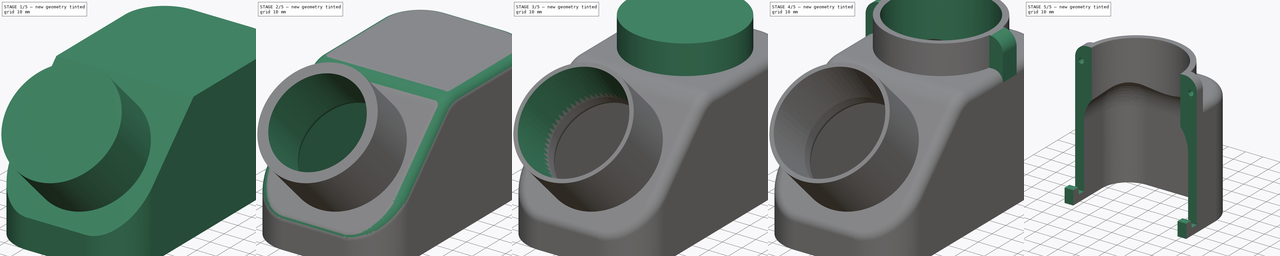
[diagram: build sequence overview — one tinted view per stage of 5, left to right]
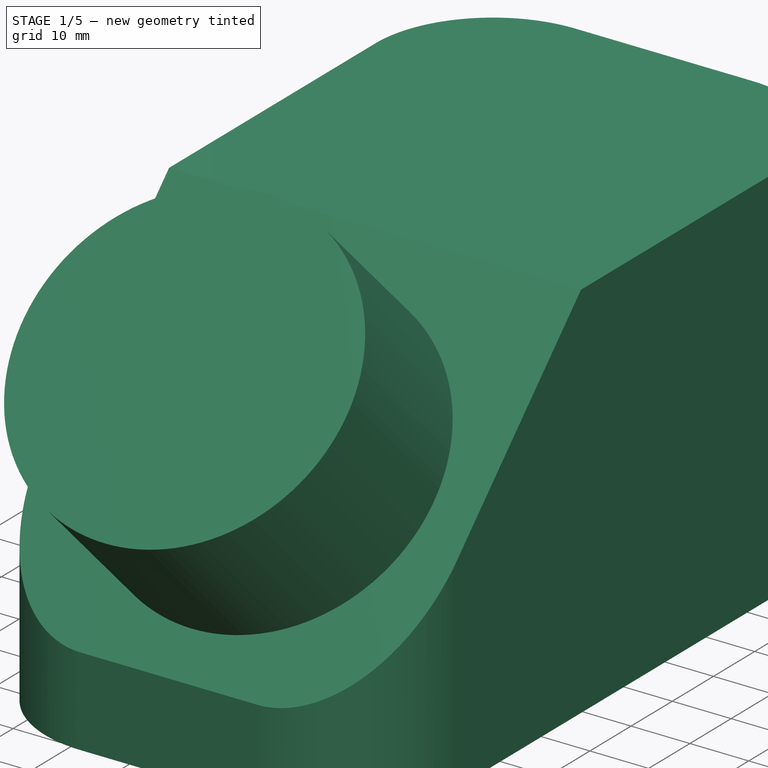
[diagram: stage 1 of 5 — iso view after this stage's code; geometry added in this stage tinted green]
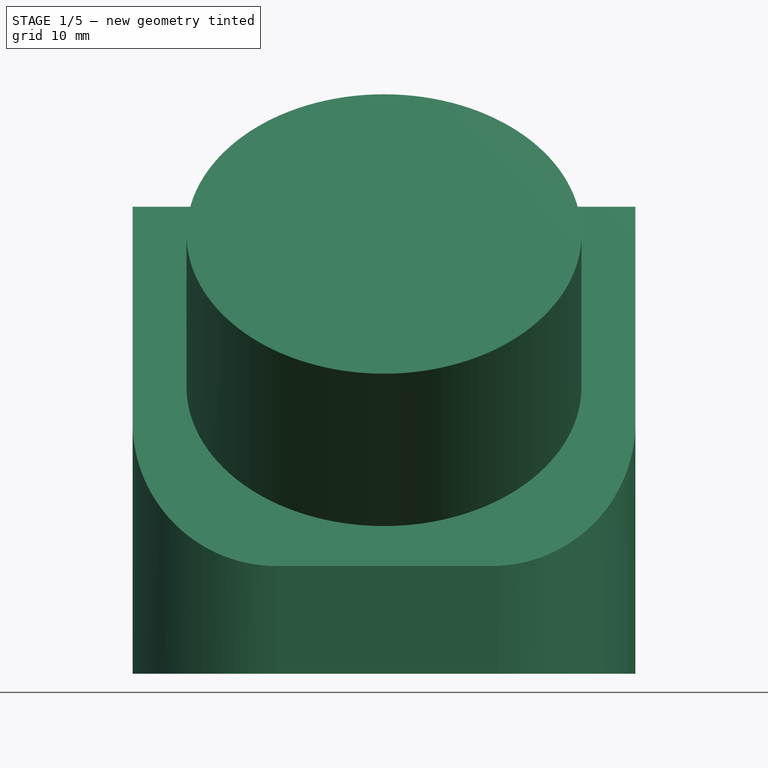
[diagram: stage 1 of 5 — front view after this stage's code; geometry added in this stage tinted green]
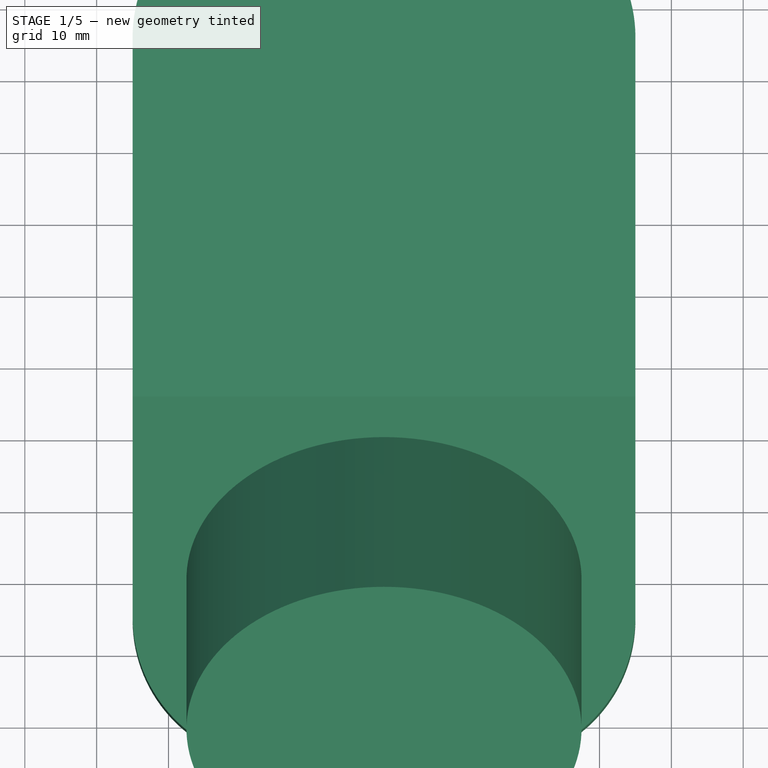
[diagram: stage 1 of 5 — top view after this stage's code; geometry added in this stage tinted green]
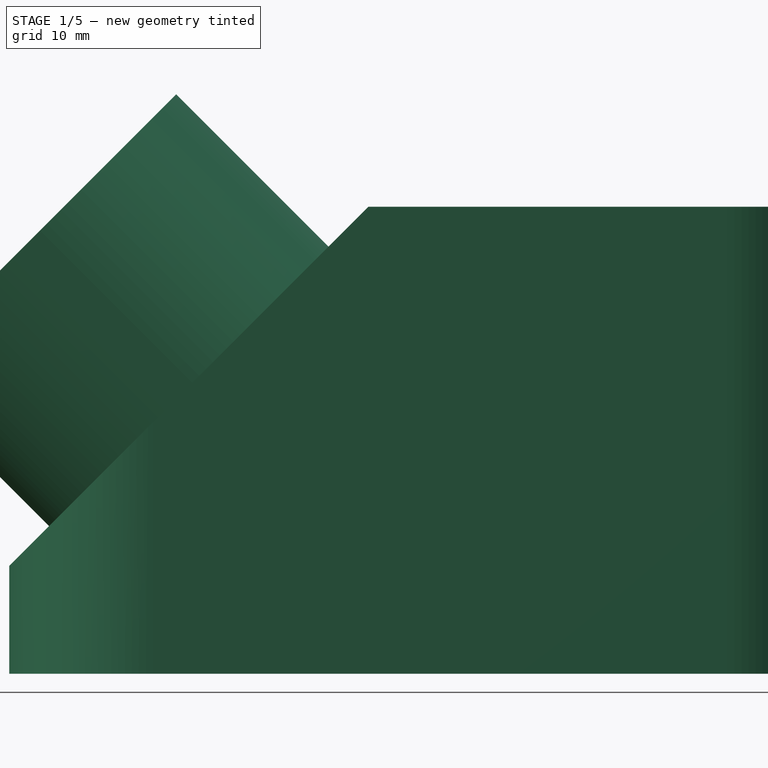
[diagram: stage 1 of 5 — right view after this stage's code; geometry added in this stage tinted green]
FCSTD DOCUMENT  (FreeCAD 0.19R23141 (Git))
Label: CNCShoe2
License: All rights reserved
LicenseURL: http://en.wikipedia.org/wiki/All_rights_reserved
objects: Sketcher::SketchObject×8, PartDesign::Fillet×5, PartDesign::Pad×4, PartDesign::Pocket×4, PartDesign::Thickness×1, PartDesign::Chamfer×1, PartDesign::Body×1
note: 39 computed .brp shape members not serialized (recipe doc carries the construction recipe); baked Part::Feature solids carry a one-line shape summary decoded from their .brp

FEATURE [Sketcher::SketchObject] Sketch
  MapMode = 5
  Placement = pos=(0,0,0) rot=(0.57735,0.57735,0.57735;2.0944rad)
  Support = -> [YZ_Plane]
  sketch-geometry (5):
    g0: LineSegment StartX=-85 StartY=0 StartZ=0 EndX=-85 EndY=15 EndZ=0
    g1: LineSegment StartX=-85 StartY=15 StartZ=0 EndX=-35 EndY=65 EndZ=0
    g2: LineSegment StartX=-35 StartY=65 StartZ=0 EndX=35 EndY=65 EndZ=0
    g3: LineSegment StartX=35 StartY=65 StartZ=0 EndX=35 EndY=0 EndZ=0
    g4: LineSegment StartX=35 StartY=0 StartZ=0 EndX=-85 EndY=0 EndZ=0
  constraints (15):
    c: PointOnObject(g0,g-1)
    c: Vertical(g0)
    c: Coincident(g0,g1)
    c: Coincident(g1,g2)
    c: Horizontal(g2)
    c: Coincident(g2,g3)
    c: PointOnObject(g3,g-1)
    c: Vertical(g3)
    c: Coincident(g3,g4)
    c: Coincident(g4,g0)
    c: DistanceX(g0,g2) = 120
    c: DistanceY(g3,g3) = 65
    c: DistanceX(g-1,g3) = 35
    c: DistanceX(g2,g2) = 70
    c: DistanceY(g0,g0) = 15
FEATURE [PartDesign::Pad] Pad
  Direction = (1,1,1)
  Length = 70
  Length2 = 100
  Midplane = true
  Placement = pos=(0,0,0) rot=(0.57735,0.57735,0.57735;2.0944rad)
  Profile = -> Sketch
  Type = 0
FEATURE [Sketcher::SketchObject] Sketch001
  ExternalGeometry = -> [Pad]
  MapMode = 5
  Placement = pos=(-3.61e-14,-50,50) rot=(0.357407,0.357407,-0.862856;1.71777rad)
  Support = -> [Pad]
  sketch-geometry (3):
    g0: LineSegment [constr] StartX=-21.2132 StartY=35 StartZ=0 EndX=14.1421 EndY=0 EndZ=0
    g1: LineSegment [constr] StartX=14.1421 StartY=0 StartZ=0 EndX=49.4975 EndY=35 EndZ=0
    g2: Circle CenterX=14.1421 CenterY=0 CenterZ=0 NormalX=0 NormalY=0 NormalZ=1 AngleXU=0 Radius=27.5
  constraints (7):
    c: Coincident(g-3,g0)
    c: Coincident(g0,g1)
    c: Coincident(g1,g-3)
    c: PointOnObject(g0,g-1)
    c: Equal(g0,g1)
    c: Coincident(g2,g0)
    c: Diameter(g2) = 55
FEATURE [PartDesign::Pad] Pad001
  BaseFeature = -> Pad
  Direction = (1,1,1)
  Length = 30
  Length2 = 100
  Placement = pos=(0,0,0) rot=(0.57735,0.57735,0.57735;2.0944rad)
  Profile = -> Sketch001
  Type = 0
FEATURE [PartDesign::Fillet] Fillet
  Base = -> Pad001 [Edge13,Edge3,Edge4,Edge15]
  BaseFeature = -> Pad001
  Placement = pos=(0,0,0) rot=(0.57735,0.57735,0.57735;2.0944rad)
  Radius = 20
  SupportTransform = false
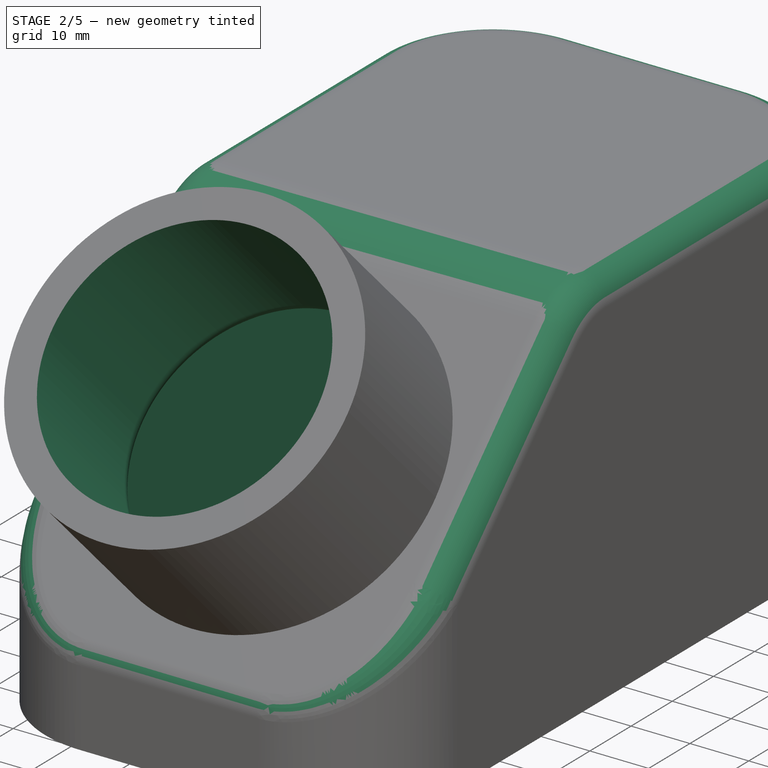
[diagram: stage 2 of 5 — iso view after this stage's code; geometry added in this stage tinted green]
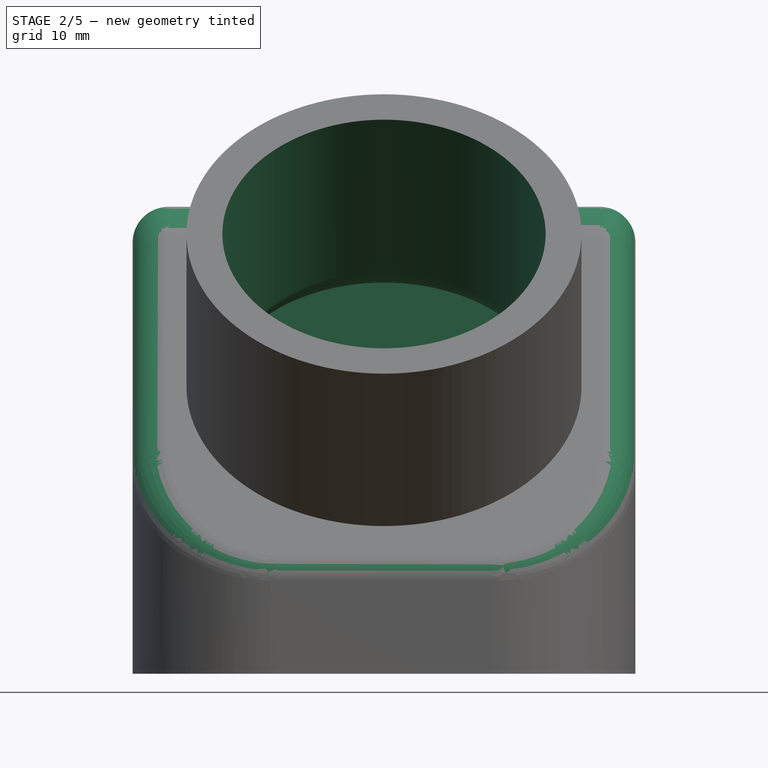
[diagram: stage 2 of 5 — front view after this stage's code; geometry added in this stage tinted green]
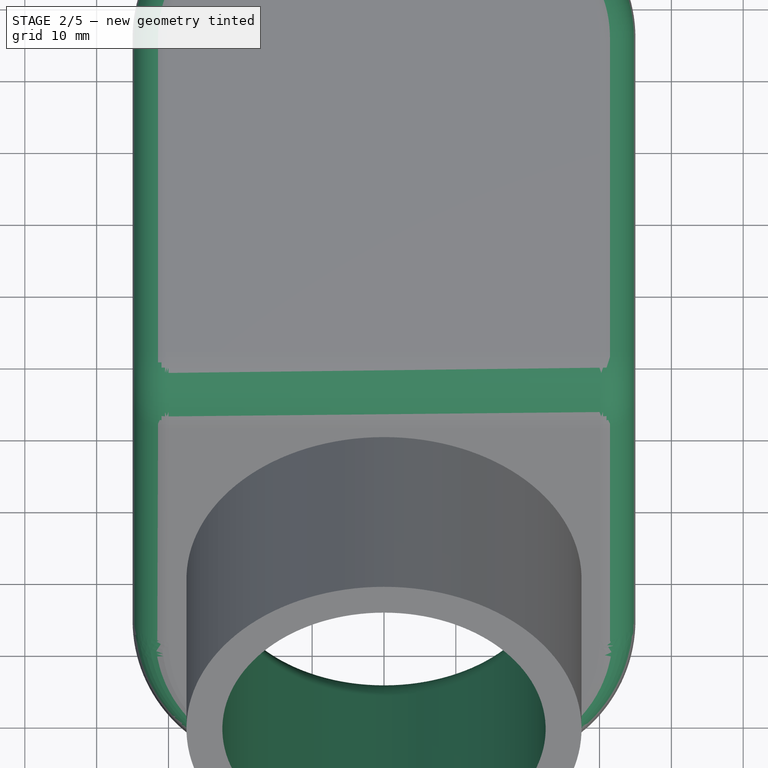
[diagram: stage 2 of 5 — top view after this stage's code; geometry added in this stage tinted green]
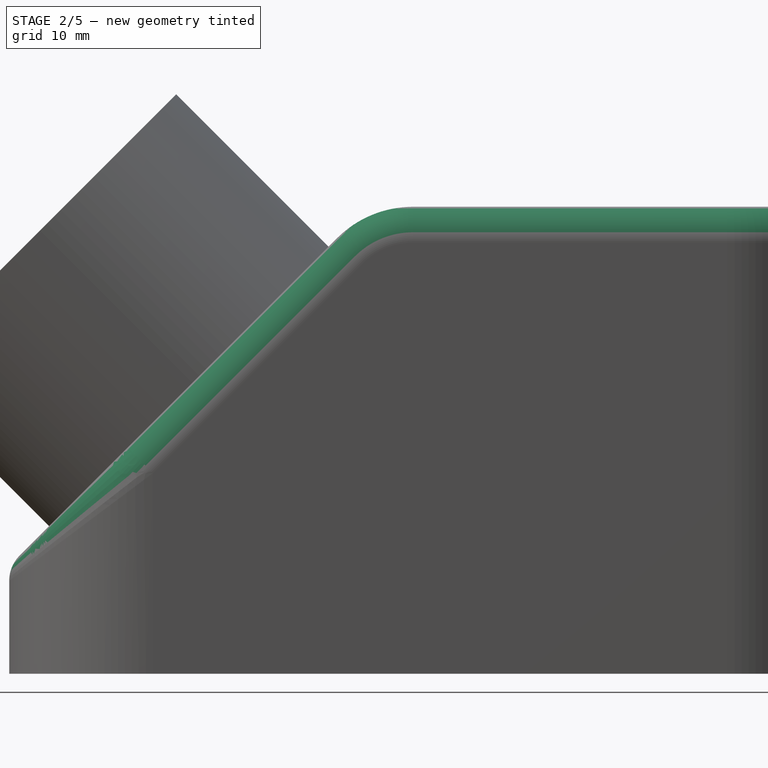
[diagram: stage 2 of 5 — right view after this stage's code; geometry added in this stage tinted green]
FEATURE [PartDesign::Thickness] Thickness
  Base = -> Fillet [Face2,Face13]
  BaseFeature = -> Fillet
  Intersection = false
  Join = 0
  Mode = 0
  Reversed = true
  SupportTransform = false
  Value = 5
FEATURE [PartDesign::Fillet] Fillet001
  Base = -> Thickness [Edge13]
  BaseFeature = -> Thickness
  Radius = 15
  SupportTransform = false
FEATURE [PartDesign::Fillet] Fillet002
  Base = -> Fillet001 [Edge10]
  BaseFeature = -> Fillet001
  Radius = 5
  SupportTransform = false
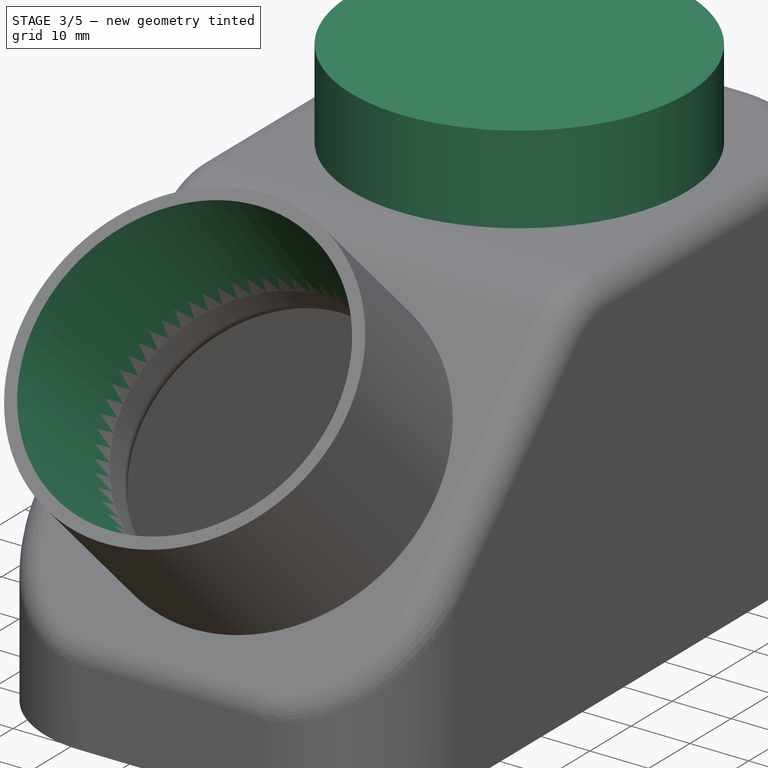
[diagram: stage 3 of 5 — iso view after this stage's code; geometry added in this stage tinted green]
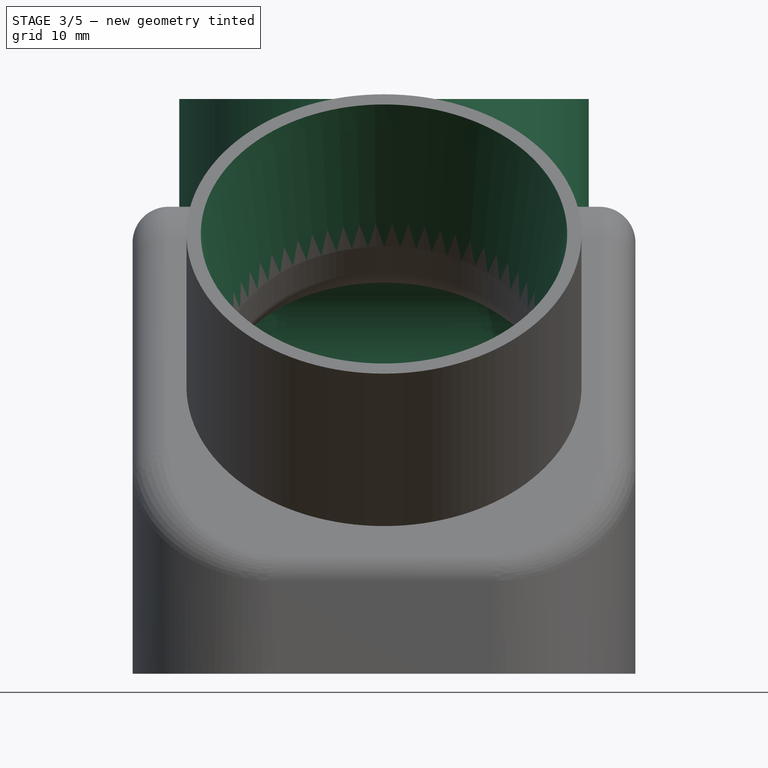
[diagram: stage 3 of 5 — front view after this stage's code; geometry added in this stage tinted green]
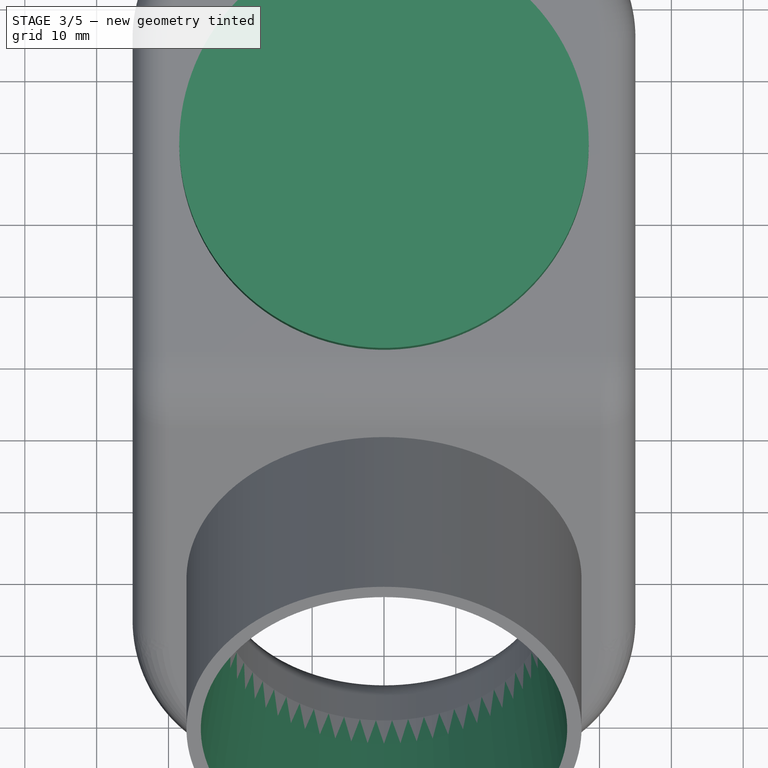
[diagram: stage 3 of 5 — top view after this stage's code; geometry added in this stage tinted green]
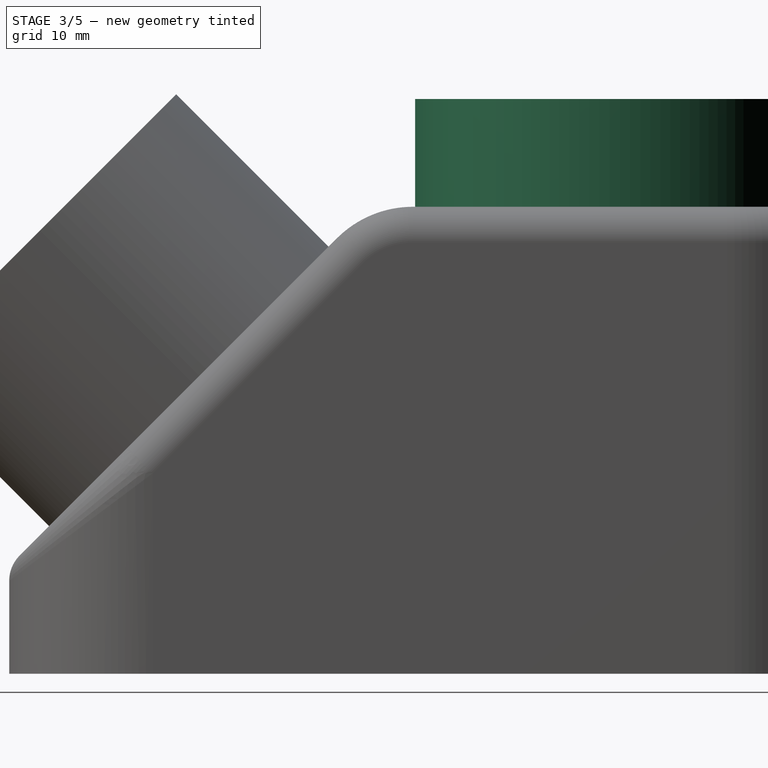
[diagram: stage 3 of 5 — right view after this stage's code; geometry added in this stage tinted green]
FEATURE [PartDesign::Chamfer] Chamfer
  Angle = 45
  Base = -> Fillet002 [Edge46]
  BaseFeature = -> Fillet002
  ChamferType = 1
  FlipDirection = false
  Size = 3
  Size2 = 25
  SupportTransform = false
FEATURE [PartDesign::Fillet] Fillet003
  Base = -> Chamfer [Edge67]
  BaseFeature = -> Chamfer
  Radius = 20
  SupportTransform = false
FEATURE [Sketcher::SketchObject] Sketch002
  MapMode = 5
  Placement = pos=(-1.82e-14,2.86e-14,65) rot=(0,0,1;0rad)
  Support = -> [Fillet003]
  sketch-geometry (1):
    g0: Circle CenterX=0 CenterY=0 CenterZ=0 NormalX=0 NormalY=0 NormalZ=1 AngleXU=0 Radius=28.5
  constraints (2):
    c: Coincident(g0,g-1)
    c: Diameter(g0) = 57
FEATURE [PartDesign::Pad] Pad002
  BaseFeature = -> Fillet003
  Direction = (1,1,1)
  Length = 15
  Length2 = 100
  Profile = -> Sketch002
  Type = 0
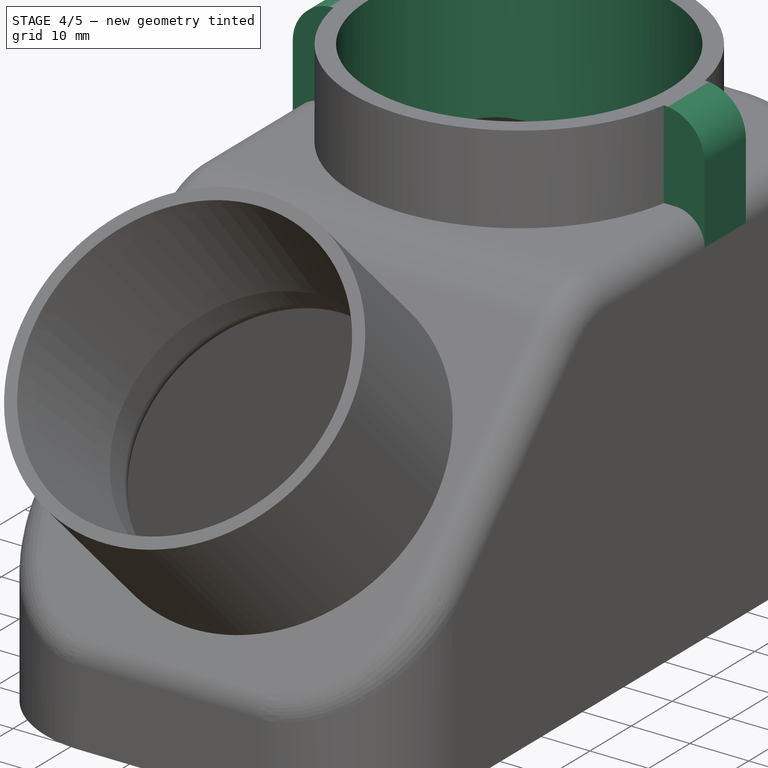
[diagram: stage 4 of 5 — iso view after this stage's code; geometry added in this stage tinted green]
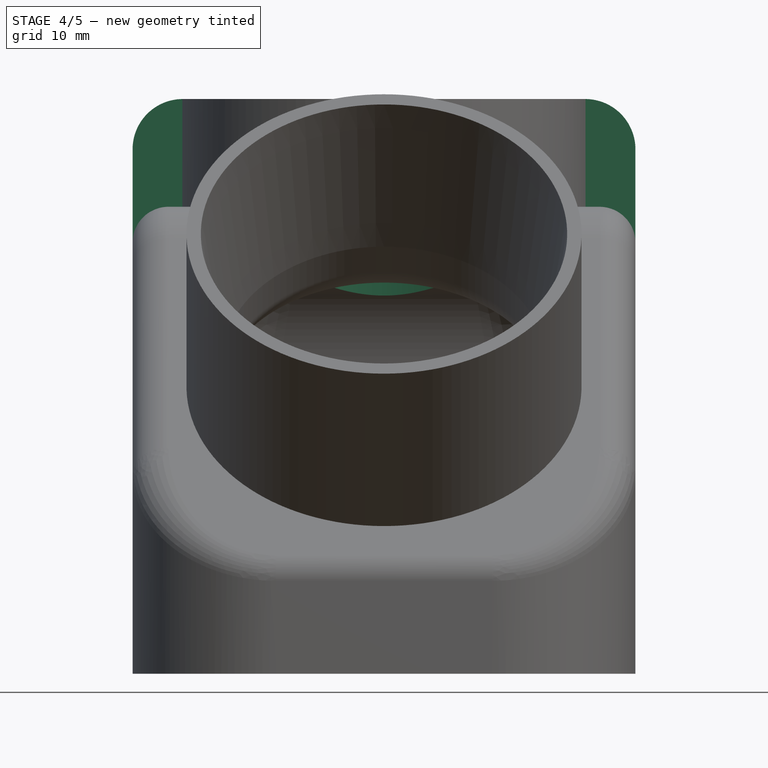
[diagram: stage 4 of 5 — front view after this stage's code; geometry added in this stage tinted green]
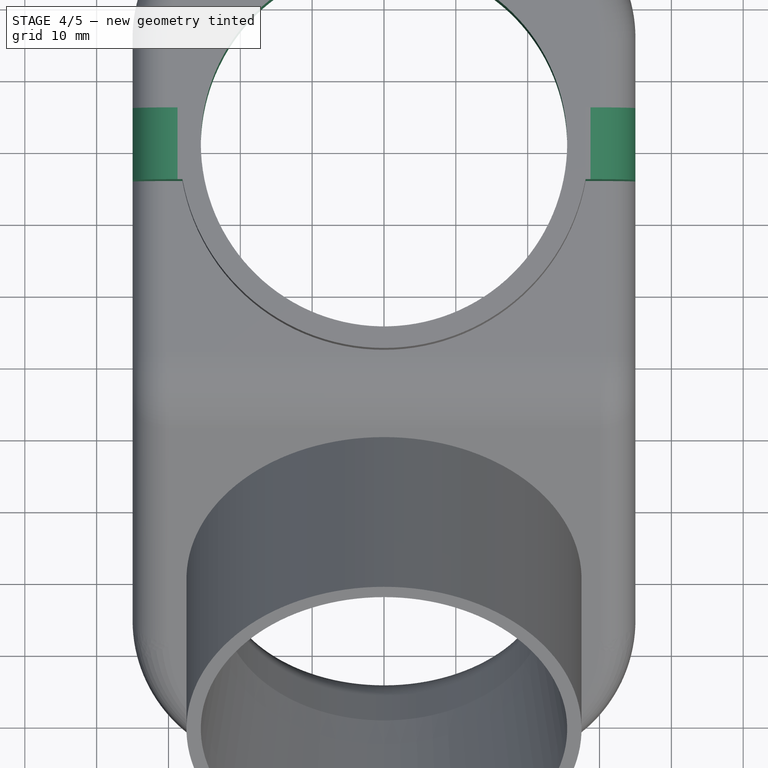
[diagram: stage 4 of 5 — top view after this stage's code; geometry added in this stage tinted green]
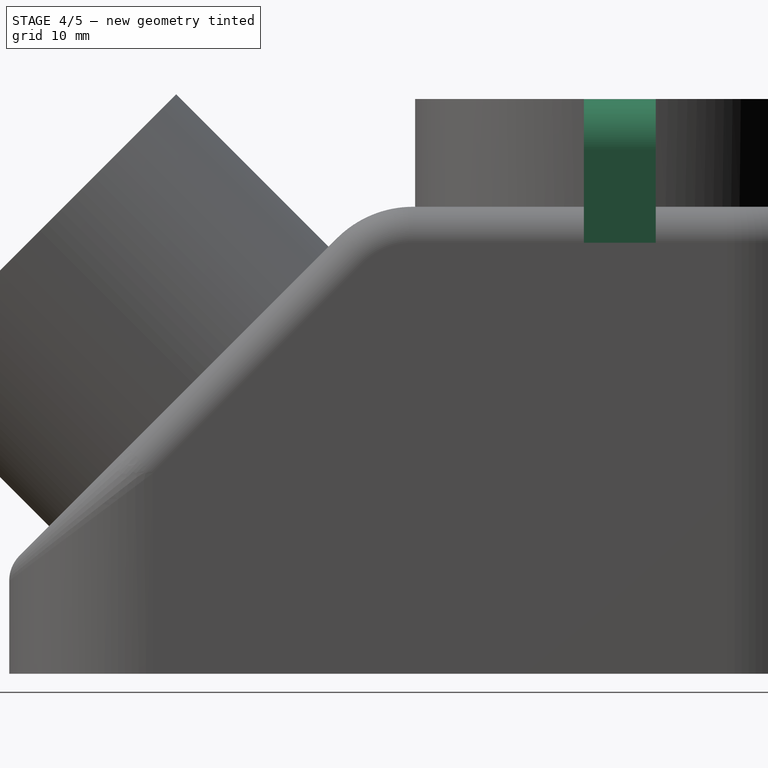
[diagram: stage 4 of 5 — right view after this stage's code; geometry added in this stage tinted green]
FEATURE [Sketcher::SketchObject] Sketch003
  MapMode = 5
  Placement = pos=(-5.28e-14,4.64e-14,80) rot=(0,0,1;0rad)
  Support = -> [Pad002]
  sketch-geometry (1):
    g0: Circle CenterX=0 CenterY=0 CenterZ=0 NormalX=0 NormalY=0 NormalZ=1 AngleXU=0 Radius=25.5
  constraints (2):
    c: Coincident(g0,g-1)
    c: Diameter(g0) = 51
FEATURE [PartDesign::Pocket] Pocket
  BaseFeature = -> Pad002
  Length = 5
  Length2 = 100
  Profile = -> Sketch003
  Type = 1
FEATURE [Sketcher::SketchObject] Sketch004
  ExternalGeometry = -> [Pocket]
  MapMode = 5
  Placement = pos=(0,0,0) rot=(0,0.707107,0.707107;3.14159rad)
  Support = -> [XZ_Plane]
  sketch-geometry (10):
    g0: LineSegment StartX=-35 StartY=60 StartZ=0 EndX=-26 EndY=60 EndZ=0
    g1: LineSegment StartX=-26 StartY=60 StartZ=0 EndX=-26 EndY=80 EndZ=0
    g2: LineSegment StartX=-26 StartY=80 StartZ=0 EndX=-35 EndY=80 EndZ=0
    g3: LineSegment StartX=-35 StartY=80 StartZ=0 EndX=-35 EndY=60 EndZ=0
    g4: LineSegment StartX=26 StartY=80 StartZ=0 EndX=35 EndY=80 EndZ=0
    g5: LineSegment StartX=35 StartY=80 StartZ=0 EndX=35 EndY=60 EndZ=0
    g6: LineSegment StartX=35 StartY=60 StartZ=0 EndX=26 EndY=60 EndZ=0
    g7: LineSegment StartX=26 StartY=60 StartZ=0 EndX=26 EndY=80 EndZ=0
    g8: LineSegment [constr] StartX=0 StartY=0 StartZ=0 EndX=26 EndY=80 EndZ=0
    g9: LineSegment [constr] StartX=-26 StartY=80 StartZ=0 EndX=-3.6e-15 EndY=0 EndZ=0
  constraints (25):
    c: Coincident(g0,g1)
    c: Coincident(g1,g2)
    c: Coincident(g2,g3)
    c: Coincident(g3,g0)
    c: Horizontal(g0)
    c: Horizontal(g2)
    c: Vertical(g1)
    c: Vertical(g3)
    c: Coincident(g4,g5)
    c: Coincident(g5,g6)
    c: Coincident(g6,g7)
    c: Coincident(g7,g4)
    c: Horizontal(g4)
    c: Horizontal(g6)
    c: Vertical(g5)
    c: Vertical(g7)
    c: Coincident(g5,g-4)
    c: PointOnObject(g4,g-5)
    c: PointOnObject(g1,g-5)
    c: Coincident(g-1,g8)
    c: Coincident(g8,g4)
    c: Coincident(g1,g9)
    c: Coincident(g9,g-1)
    c: Equal(g9,g8)
    c: DistanceX(g1,g4) = 52
FEATURE [PartDesign::Pad] Pad003
  BaseFeature = -> Pocket
  Direction = (1,1,1)
  Length = 10
  Length2 = 100
  Midplane = true
  Profile = -> Sketch004
  Refine = true
  Type = 0
FEATURE [PartDesign::Fillet] Fillet004
  Base = -> Pad003 [Edge137,Edge138]
  BaseFeature = -> Pad003
  Radius = 7
  SupportTransform = false
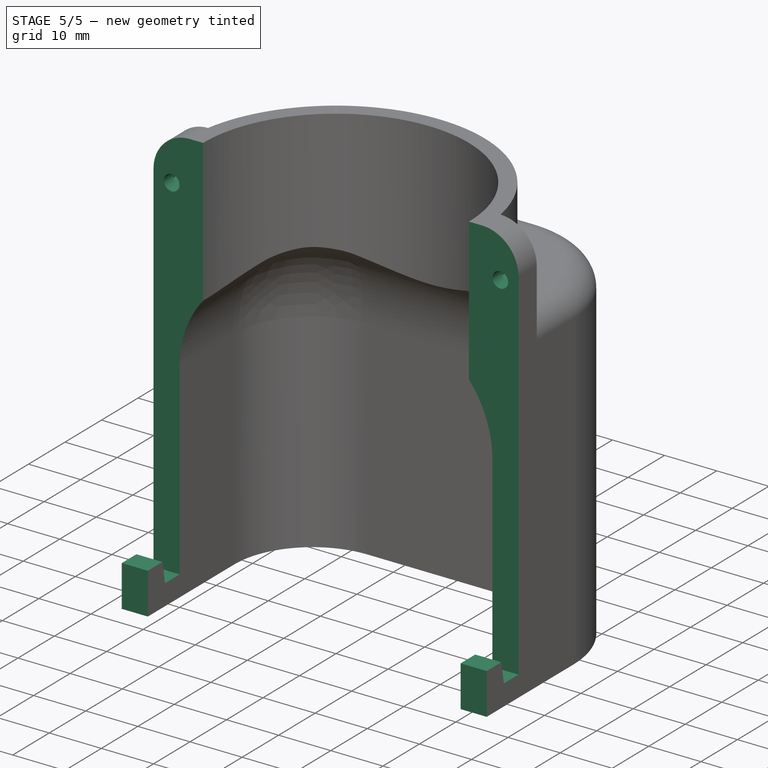
[diagram: stage 5 of 5 — iso view after this stage's code; geometry added in this stage tinted green]
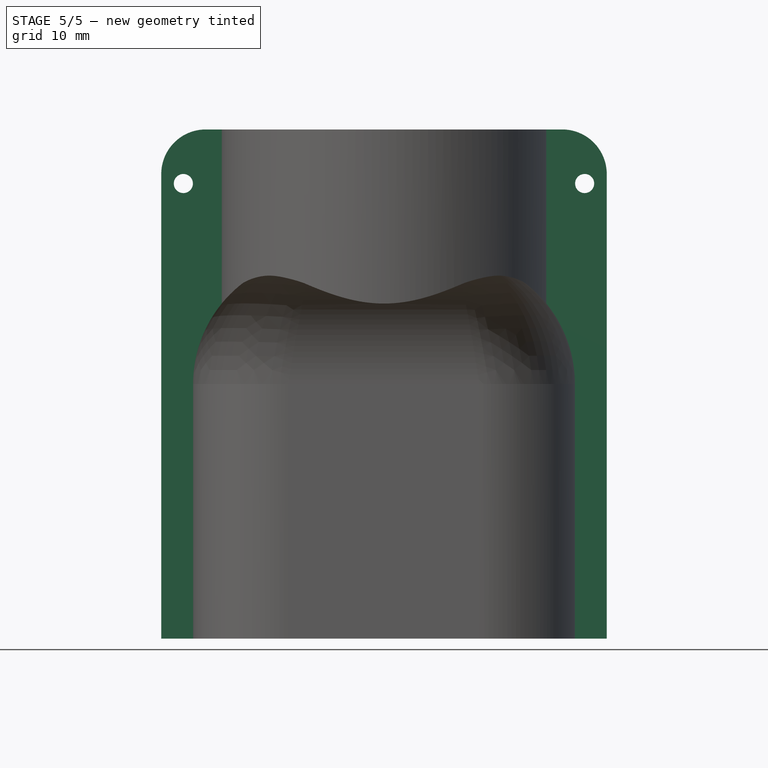
[diagram: stage 5 of 5 — front view after this stage's code; geometry added in this stage tinted green]
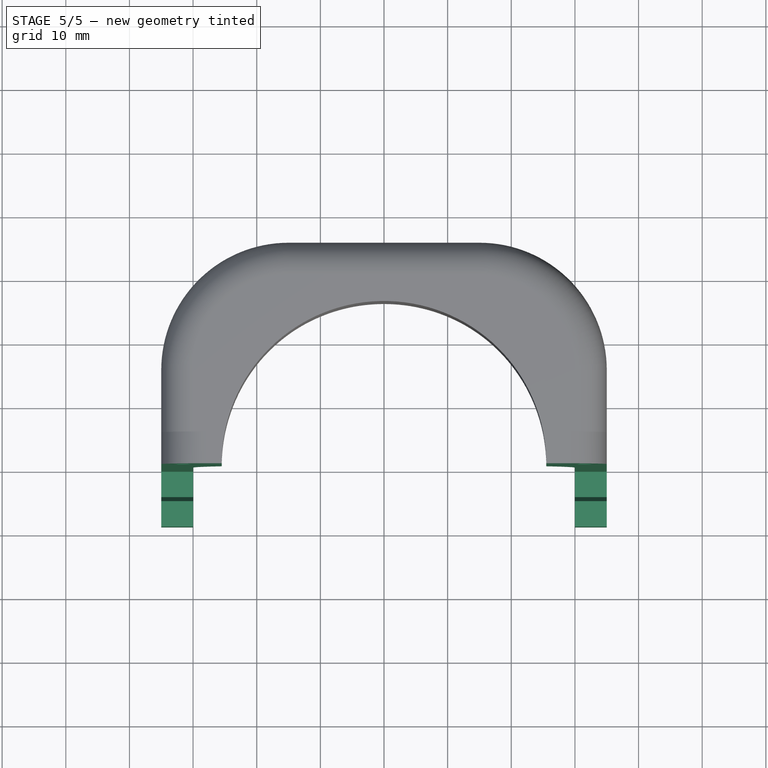
[diagram: stage 5 of 5 — top view after this stage's code; geometry added in this stage tinted green]
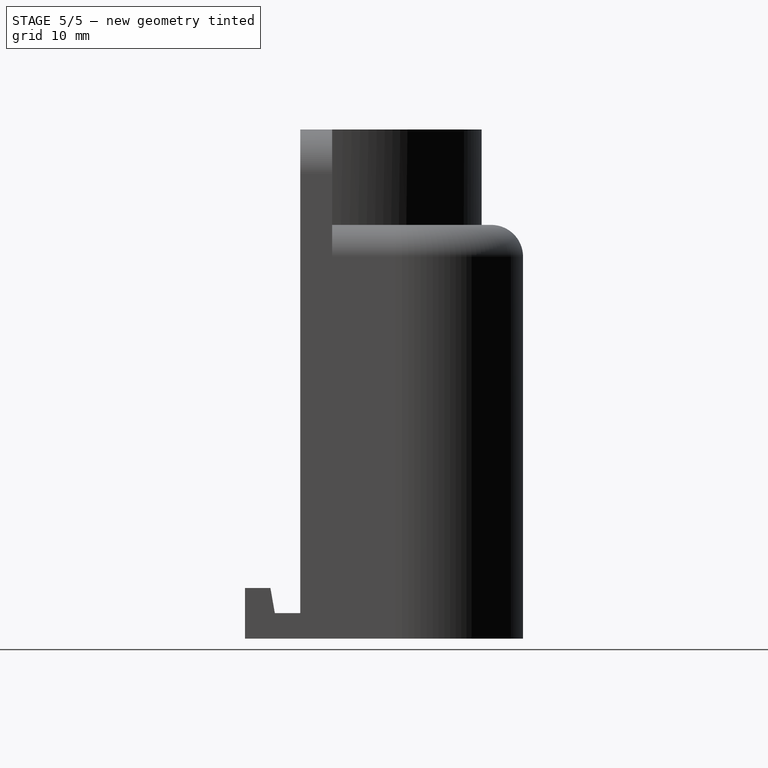
[diagram: stage 5 of 5 — right view after this stage's code; geometry added in this stage tinted green]
FEATURE [Sketcher::SketchObject] Sketch006
  ExternalGeometry = -> [Fillet004]
  MapMode = 5
  Placement = pos=(0,-5,1.1e-15) rot=(1,0,0;1.5708rad)
  Support = -> [Fillet004]
  sketch-geometry (10):
    g0: Circle CenterX=-31.529 CenterY=71.4998 CenterZ=0 NormalX=0 NormalY=0 NormalZ=1 AngleXU=0 Radius=1.5
    g1: Circle CenterX=31.529 CenterY=71.4998 CenterZ=0 NormalX=0 NormalY=0 NormalZ=1 AngleXU=0 Radius=1.5
    g2: LineSegment [constr] StartX=28.058 StartY=79.9998 StartZ=0 EndX=35 EndY=79.9998 EndZ=0
    g3: LineSegment [constr] StartX=35 StartY=79.9998 StartZ=0 EndX=35 EndY=73 EndZ=0
    g4: LineSegment [constr] StartX=28.058 StartY=79.9998 StartZ=0 EndX=31.529 EndY=71.4998 EndZ=0
    g5: LineSegment [constr] StartX=31.529 StartY=71.4998 StartZ=0 EndX=35 EndY=79.9998 EndZ=0
    g6: LineSegment [constr] StartX=-35 StartY=73 StartZ=0 EndX=-35 EndY=79.9998 EndZ=0
    g7: LineSegment [constr] StartX=-28.058 StartY=79.9998 StartZ=0 EndX=-35 EndY=79.9998 EndZ=0
    g8: LineSegment [constr] StartX=-35 StartY=79.9998 StartZ=0 EndX=-31.529 EndY=71.4998 EndZ=0
    g9: LineSegment [constr] StartX=-31.529 StartY=71.4998 StartZ=0 EndX=-28.058 EndY=79.9998 EndZ=0
  constraints (24):
    c: Coincident(g-3,g2)
    c: Coincident(g2,g3)
    c: Coincident(g3,g-3)
    c: Coincident(g2,g4)
    c: Coincident(g4,g1)
    c: Coincident(g4,g5)
    c: Coincident(g5,g2)
    c: Horizontal(g2)
    c: Vertical(g3)
    c: Equal(g5,g4)
    c: Coincident(g6,g-4)
    c: Vertical(g6)
    c: Coincident(g7,g-4)
    c: Coincident(g7,g6)
    c: Horizontal(g7)
    c: Coincident(g6,g8)
    c: Coincident(g8,g0)
    c: Coincident(g8,g9)
    c: Coincident(g9,g7)
    c: Equal(g9,g8)
    c: Equal(g8,g4)
    c: Diameter(g0) = 3
    c: Equal(g0,g1)
    c: DistanceY(g8,g8) = 8.5
FEATURE [PartDesign::Pocket] Pocket002
  BaseFeature = -> Fillet004
  Length = 5
  Length2 = 100
  Profile = -> Sketch006
  Type = 1
FEATURE [Sketcher::SketchObject] Sketch007
  ExternalGeometry = -> [Pocket002]
  MapMode = 5
  Placement = pos=(0,5,-1.1e-15) rot=(0,0.707107,0.707107;3.14159rad)
  Support = -> [Pocket002]
  sketch-geometry (14):
    g0: LineSegment StartX=-28.779 StartY=69.912 StartZ=0 EndX=-28.779 EndY=73.0875 EndZ=0
    g1: LineSegment StartX=-28.779 StartY=73.0875 StartZ=0 EndX=-31.529 EndY=74.6752 EndZ=0
    g2: LineSegment StartX=-31.529 StartY=74.6752 StartZ=0 EndX=-34.279 EndY=73.0875 EndZ=0
    g3: LineSegment StartX=-34.279 StartY=73.0875 StartZ=0 EndX=-34.279 EndY=69.912 EndZ=0
    g4: LineSegment StartX=-34.279 StartY=69.912 StartZ=0 EndX=-31.529 EndY=68.3243 EndZ=0
    g5: LineSegment StartX=-31.529 StartY=68.3243 StartZ=0 EndX=-28.779 EndY=69.912 EndZ=0
    g6: Circle [constr] CenterX=-31.529 CenterY=71.4998 CenterZ=0 NormalX=0 NormalY=0 NormalZ=1 AngleXU=0 Radius=3.17543
    g7: LineSegment StartX=34.279 StartY=69.912 StartZ=0 EndX=34.279 EndY=73.0875 EndZ=0
    g8: LineSegment StartX=34.279 StartY=73.0875 StartZ=0 EndX=31.529 EndY=74.6752 EndZ=0
    g9: LineSegment StartX=31.529 StartY=74.6752 StartZ=0 EndX=28.779 EndY=73.0875 EndZ=0
    g10: LineSegment StartX=28.779 StartY=73.0875 StartZ=0 EndX=28.779 EndY=69.912 EndZ=0
    g11: LineSegment StartX=28.779 StartY=69.912 StartZ=0 EndX=31.529 EndY=68.3243 EndZ=0
    g12: LineSegment StartX=31.529 StartY=68.3243 StartZ=0 EndX=34.279 EndY=69.912 EndZ=0
    g13: Circle [constr] CenterX=31.529 CenterY=71.4998 CenterZ=0 NormalX=0 NormalY=0 NormalZ=1 AngleXU=0 Radius=3.17543
  constraints (32):
    c: Coincident(g0,g1)
    c: Coincident(g1,g2)
    c: Coincident(g2,g3)
    c: Coincident(g3,g4)
    c: Coincident(g4,g5)
    c: Coincident(g5,g0)
    c: Equal(g0, g1-g5) x5
    c: PointOnObject(g0,g6)
    c: PointOnObject(g1,g6)
    c: PointOnObject(g2,g6)
    c: PointOnObject(g3,g6)
    c: PointOnObject(g4,g6)
    c: PointOnObject(g5,g6)
    c: Coincident(g6,g-4)
    c: Coincident(g7,g8)
    c: Coincident(g8,g9)
    c: Coincident(g9,g10)
    c: Coincident(g10,g11)
    c: Coincident(g11,g12)
    c: Coincident(g12,g7)
    c: Equal(g7, g8-g12) x5
    c: PointOnObject(g7,g13)
    c: PointOnObject(g8,g13)
    c: PointOnObject(g9,g13)
    c: PointOnObject(g10,g13)
    c: PointOnObject(g11,g13)
    c: PointOnObject(g12,g13)
    c: Coincident(g13,g-3)
    c: Vertical(g10)
    c: Vertical(g3)
    c: DistanceX(g2,g0) = 5.5
    c: DistanceX(g9,g7) = 5.5
FEATURE [PartDesign::Pocket] Pocket003
  BaseFeature = -> Pocket002
  Length = 2.5
  Length2 = 100
  Profile = -> Sketch007
  Type = 0
FEATURE [Sketcher::SketchObject] Sketch008
  MapMode = 5
  Placement = pos=(-35,2.66e-14,-1.82e-14) rot=(-0.57735,0.57735,0.57735;4.18879rad)
  Support = -> [Pocket003]
  sketch-geometry (8):
    g0: LineSegment StartX=0 StartY=94.0469 StartZ=0 EndX=120.732 EndY=94.0469 EndZ=0
    g1: LineSegment StartX=120.732 StartY=94.0469 StartZ=0 EndX=120.732 EndY=0 EndZ=0
    g2: LineSegment StartX=120.732 StartY=0 StartZ=0 EndX=8.69459 EndY=0 EndZ=0
    g3: LineSegment StartX=8.69459 StartY=0 StartZ=0 EndX=8.69459 EndY=7.93923 EndZ=0
    g4: LineSegment StartX=8.69459 StartY=7.93923 StartZ=0 EndX=4.69459 EndY=7.93923 EndZ=0
    g5: LineSegment StartX=4.69459 StartY=7.93923 StartZ=0 EndX=4 EndY=4 EndZ=0
    g6: LineSegment StartX=4 StartY=4 StartZ=0 EndX=0 EndY=4 EndZ=0
    g7: LineSegment StartX=0 StartY=4 StartZ=0 EndX=0 EndY=94.0469 EndZ=0
  constraints (22):
    c: PointOnObject(g0,g-2)
    c: Horizontal(g0)
    c: Coincident(g0,g1)
    c: PointOnObject(g1,g-1)
    c: Vertical(g1)
    c: Coincident(g1,g2)
    c: PointOnObject(g2,g-1)
    c: Coincident(g2,g3)
    c: Vertical(g3)
    c: Coincident(g3,g4)
    c: Horizontal(g4)
    c: Coincident(g4,g5)
    c: Coincident(g5,g6)
    c: PointOnObject(g6,g-2)
    c: Coincident(g6,g7)
    c: Coincident(g7,g0)
    c: Horizontal(g6)
    c: Equal(g6,g5)
    c: DistanceY(g-1,g6) = 4
    c: Equal(g4,g5)
    c: DistanceX(g6,g6) = 4
    c: Angle(g5,g6) = 1.74533
FEATURE [PartDesign::Pocket] Pocket004
  BaseFeature = -> Pocket003
  Length = 5
  Length2 = 100
  Profile = -> Sketch008
  Type = 1
FEATURE [PartDesign::Body] Body
  Group = -> [Sketch,Pad,Sketch001,Pad001,Fillet,Thickness,Fillet001,Fillet002,Chamfer,Fillet003,Sketch002,Pad002,Sketch003,Pocket,Sketch004,Pad003,Fillet004,Sketch006,Pocket002,Sketch007,Pocket003,Sketch008,Pocket004]
  Origin = -> Origin
  Tip = -> Pocket004
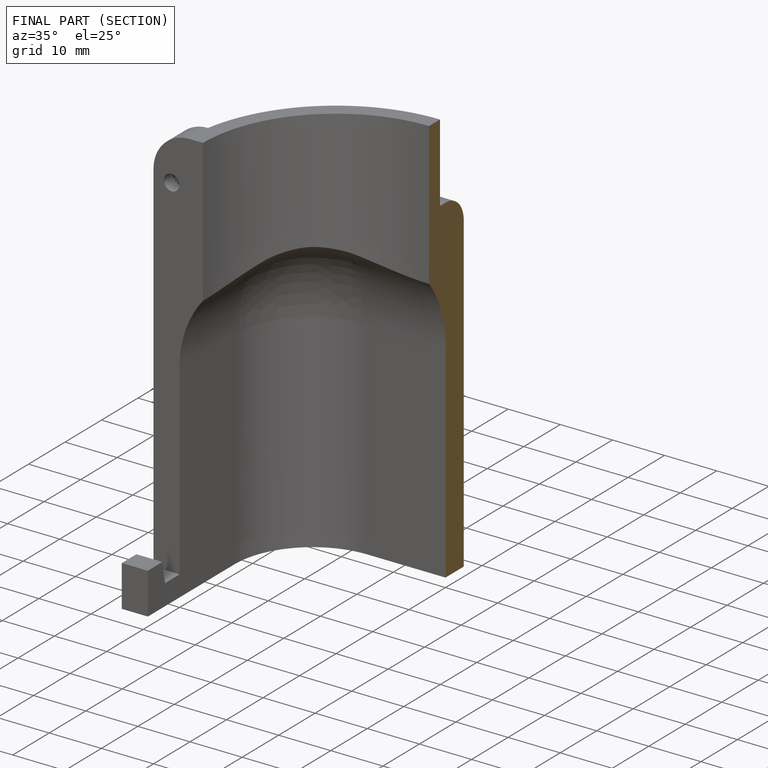
[diagram: finished part — half-section view (interior)]
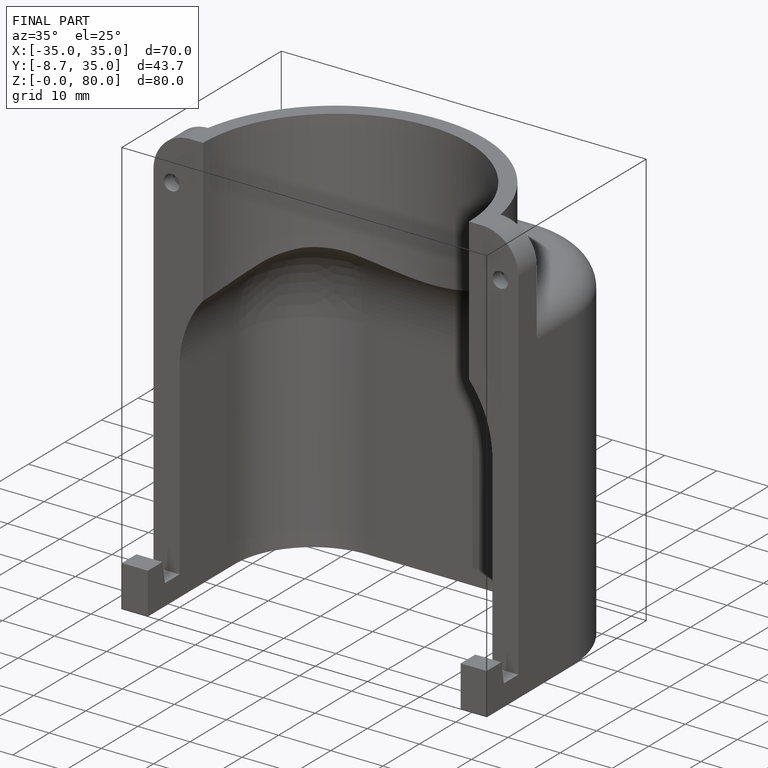
[diagram: finished part — iso view with bounding-box wireframe]
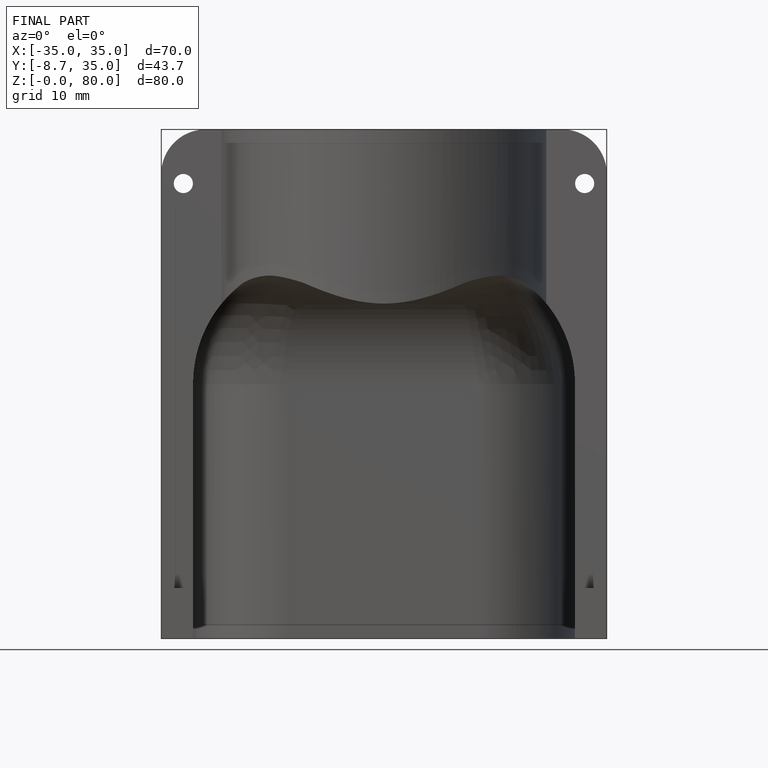
[diagram: finished part — front view with bounding-box wireframe]
